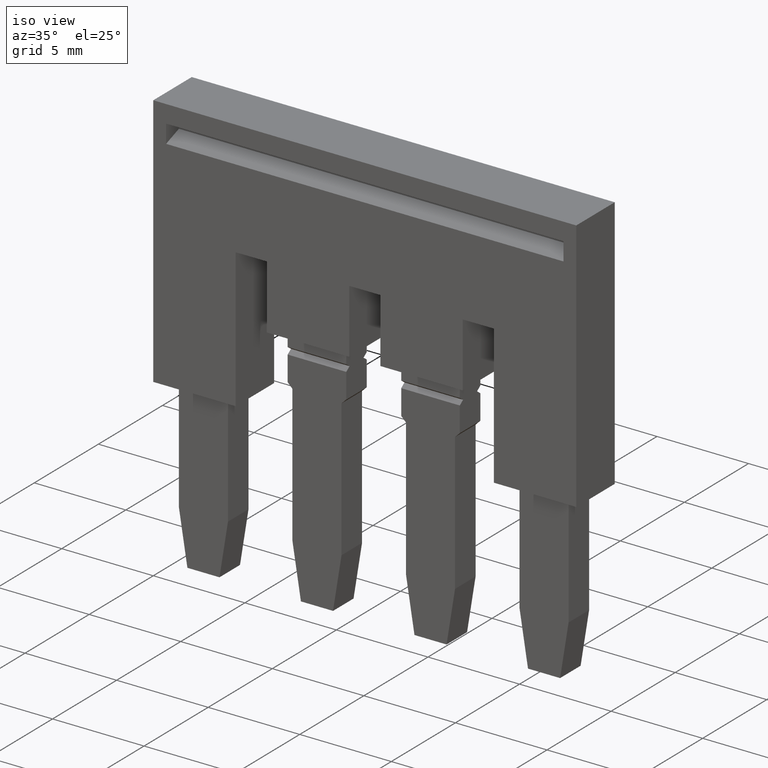
[diagram: clean part render]
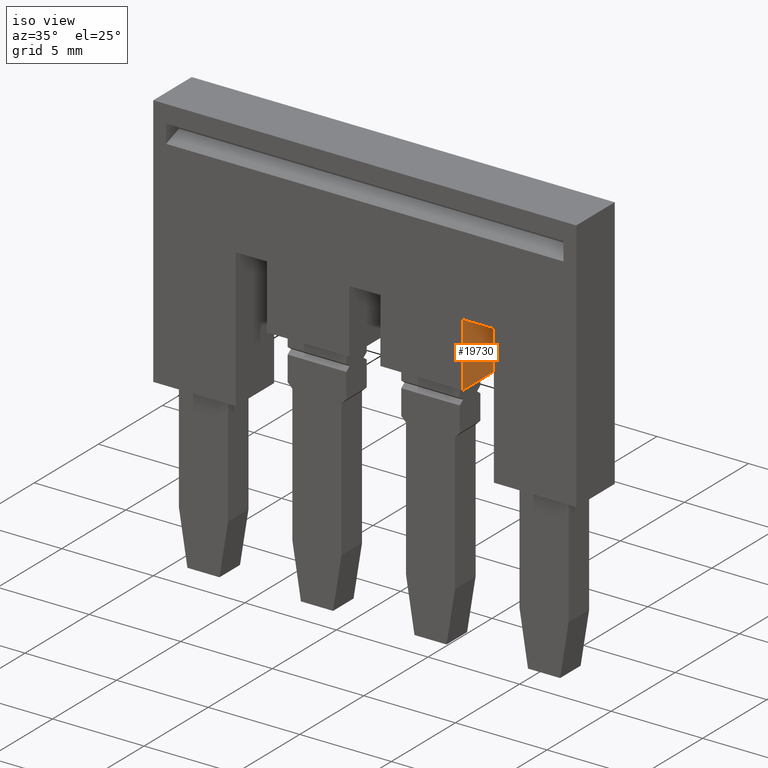
[diagram: same view with one face highlighted and labeled with its STEP entity id]
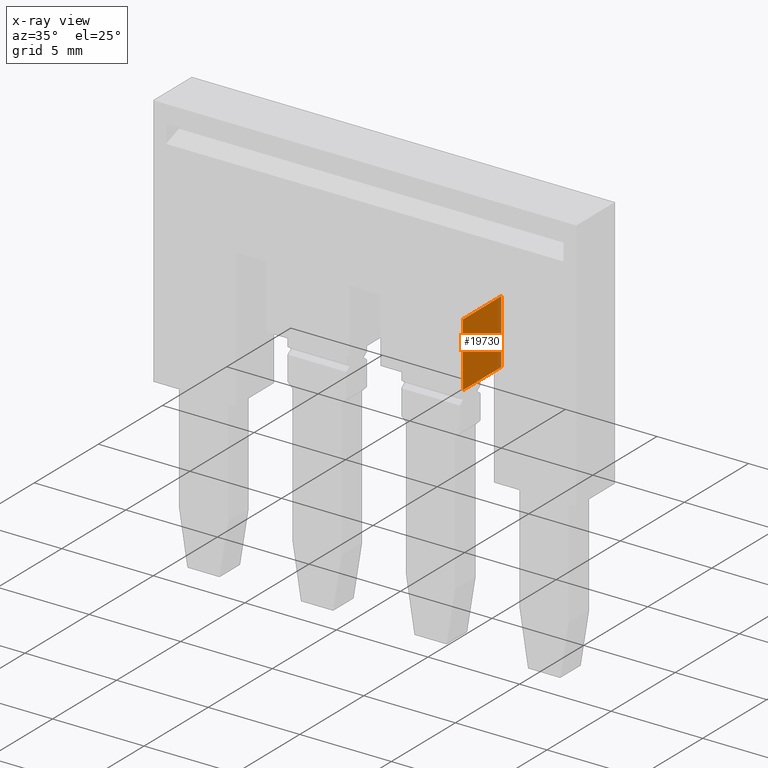
[diagram: x-ray of the same camera — body ghosted, the highlighted face saturated]
A machine part, iso view. The second image highlights one B-rep face of the part: STEP entity #19730.
The next image is the same camera in x-ray: the body ghosted, the highlighted face saturated — about 10% of this face is hidden behind the body in this view.
In plain terms, the highlighted planar face has unit normal (1, -0, -0).
Its self-contained STEP definition (entity closure, byte-faithful):
#870=CARTESIAN_POINT('',(0.,-18.9750000000004,43.8099999999988));
#880=DIRECTION('',(-1.,0.,-2.13821176807375E-50));
#890=VECTOR('',#880,1.);
#900=LINE('',#870,#890);
#910=CARTESIAN_POINT('',(5.60716722168537,-18.9750000000004,
43.8099999999988));
#920=VERTEX_POINT('',#910);
#930=CARTESIAN_POINT('',(2.60716722168536,-18.9750000000004,
43.8099999999988));
#940=VERTEX_POINT('',#930);
#950=EDGE_CURVE('',#920,#940,#900,.T.);
#1480=CARTESIAN_POINT('',(2.60716722168536,-15.4750000000004,
43.8099999999988));
#1490=VERTEX_POINT('',#1480);
#1520=CARTESIAN_POINT('',(5.60716722168535,-15.4750000000004,
43.8099999999988));
#1530=DIRECTION('',(1.,0.,2.13821176807375E-50));
#1540=VECTOR('',#1530,1.);
#1550=LINE('',#1520,#1540);
#1560=CARTESIAN_POINT('',(5.60716722168537,-15.4750000000004,
43.8099999999988));
#1570=VERTEX_POINT('',#1560);
#1580=EDGE_CURVE('',#1490,#1570,#1550,.T.);
#6140=CARTESIAN_POINT('',(5.60716722168537,0.,43.8099999999988));
#6150=DIRECTION('',(0.,1.,0.));
#6160=VECTOR('',#6150,1.);
#6170=LINE('',#6140,#6160);
#6180=EDGE_CURVE('',#920,#1570,#6170,.T.);
#18690=CARTESIAN_POINT('',(2.60716722168536,0.,43.8099999999988));
#18700=DIRECTION('',(0.,1.,0.));
#18710=VECTOR('',#18700,1.);
#18720=LINE('',#18690,#18710);
#18730=EDGE_CURVE('',#940,#1490,#18720,.T.);
#19620=CARTESIAN_POINT('',(5.60716722168535,-18.9750000000004,
43.8099999999988));
#19630=DIRECTION('',(2.13821176807375E-50,0.,-1.));
#19640=DIRECTION('',(0.,-1.,0.));
#19650=AXIS2_PLACEMENT_3D('',#19620,#19630,#19640);
#19660=PLANE('',#19650);
#19670=ORIENTED_EDGE('',*,*,#1580,.T.);
#19680=ORIENTED_EDGE('',*,*,#18730,.T.);
#19690=ORIENTED_EDGE('',*,*,#950,.T.);
#19700=ORIENTED_EDGE('',*,*,#6180,.F.);
#19710=EDGE_LOOP('',(#19700,#19690,#19680,#19670));
#19720=FACE_OUTER_BOUND('',#19710,.T.);
#19730=ADVANCED_FACE('',(#19720),#19660,.T.);